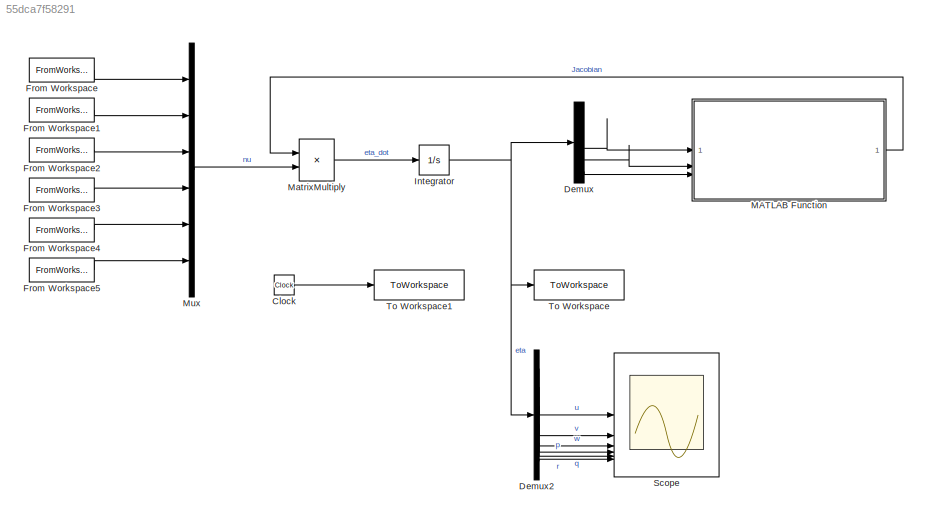
MODEL slx_55dca7f58291
KIND model
CONFIG AbsTol = auto
CONFIG EnableMultiTasking = off
CONFIG FixedStep = auto
CONFIG MaxStep = auto
CONFIG MinStep = auto
CONFIG RelTol = 1e-3
CONFIG SampleTimeConstraint = Unconstrained
CONFIG SolverName = VariableStepAuto
CONFIG StartTime = 0.0
CONFIG StopTime = 80
BLOCK [Clock] Clock
BLOCK [Demux] Demux
  Outputs = 6
BLOCK [Demux] Demux2
  Outputs = 6
BLOCK [FromWorkspace] From Workspace
  VariableName = ts_u
BLOCK [FromWorkspace] From Workspace1
  VariableName = ts_v
BLOCK [FromWorkspace] From Workspace2
  VariableName = ts_w
BLOCK [FromWorkspace] From Workspace3
  VariableName = ts_p
BLOCK [FromWorkspace] From Workspace4
  VariableName = ts_q
BLOCK [FromWorkspace] From Workspace5
  VariableName = ts_r
BLOCK [Integrator] Integrator
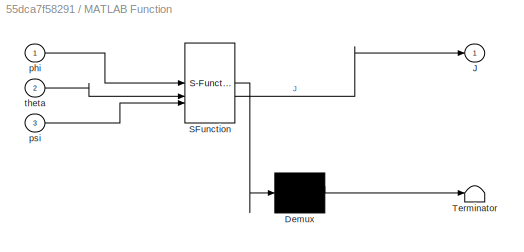
BLOCK [SubSystem] MATLAB Function
  ErrorFcn = Stateflow.Translate.translate
  PermitHierarchicalResolution = ExplicitOnly
  SFBlockType = MATLAB Function
  TreatAsAtomicUnit = on
BLOCK [Demux] MATLAB Function/ Demux 
  Outputs = 1
BLOCK [S-Function] MATLAB Function/ SFunction 
  EnableBusSupport = on
  FunctionName = sf_sfun
  PortCounts = [3 2]
  SFcnIsStateOwnerBlock = off
  SFunctionDeploymentMode = off
  Tag = Stateflow S-Function 2
BLOCK [Terminator] MATLAB Function/ Terminator 
BLOCK [Outport] MATLAB Function/J
BLOCK [Inport] MATLAB Function/phi
BLOCK [Inport] MATLAB Function/psi
  Port = 3
BLOCK [Inport] MATLAB Function/theta
  Port = 2
BLOCK [Product] MatrixMultiply
  Multiplication = Matrix(*)
BLOCK [Mux] Mux
  DisplayOption = bar
  Inputs = 6
BLOCK [Scope] Scope
  Floating = off
  NumInputPorts = 6
  ScopeSpecificationString = Simulink.scopes.TimeScopeBlockCfg('CurrentConfiguration', extmgr.ConfigurationSet(extmgr.Configuration('Core','General UI',true),extmgr.Configuration('Core','Source UI',true),extmgr.Configuration('Sources','WiredSimulink',true),extmgr.Configuration('Visuals','Time Domain',true,'SerializedDisplays',{struct('MinYLimReal','-4.44657','MaxYLimReal','8.94829','YLabelReal','','MinYLimMag','0.00000','MaxY...<+1616ch>
BLOCK [ToWorkspace] To Workspace
  FixptAsFi = on
  MaxDataPoints = inf
  SampleTime = -1
  VariableName = eta_sim
BLOCK [ToWorkspace] To Workspace1
  FixptAsFi = on
  MaxDataPoints = inf
  SampleTime = -1
  VariableName = t_sim
LINE Clock:1 -> To Workspace1:1
LINE Demux2:1 -> Scope:1
LINE Demux2:2 -> Scope:2
LINE Demux2:3 -> Scope:3
LINE Demux2:4 -> Scope:4
LINE Demux2:5 -> Scope:5
LINE Demux2:6 -> Scope:6
LINE Demux:4 -> MATLAB Function:1
LINE Demux:5 -> MATLAB Function:2
LINE Demux:6 -> MATLAB Function:3
LINE From Workspace1:1 -> Mux:2
LINE From Workspace2:1 -> Mux:3
LINE From Workspace3:1 -> Mux:4
LINE From Workspace4:1 -> Mux:5
LINE From Workspace5:1 -> Mux:6
LINE From Workspace:1 -> Mux:1
NET Integrator:1 -> Demux2:1, Demux:1, To Workspace:1
LINE MATLAB Function:1 -> MatrixMultiply:1
LINE MatrixMultiply:1 -> Integrator:1
LINE Mux:1 -> MatrixMultiply:2
note: NET lines group one-source signal fan-out (src -> all destinations, sorted); 1:1 wires keep LINE
CHART MATLAB Function states=1 transitions=1
  STATE_LABEL 'eML_blk_kernel()'
  STATE_LABEL 'SCRIPT:\nfunction J = computeJacobian(phi, theta, psi)\n\nRz = [cos(psi), -sin(psi), 0;\n      sin(psi),  cos(psi), 0;\n      0,         0,        1];\nRy = [cos(theta), 0, sin(theta);\n      0,          1, 0;\n     -sin(theta), 0, cos(theta)];\nRx = [1, 0,        0;\n      0, cos(phi), -sin(phi);\n      0, sin(phi),  cos(phi)];\nR = Rz * Ry * Rx;\n\nT = [1, sin(phi)*tan(theta), cos(phi)*tan(theta);\n     0, cos...<+106ch>'
CHART  states=0 transitions=0
